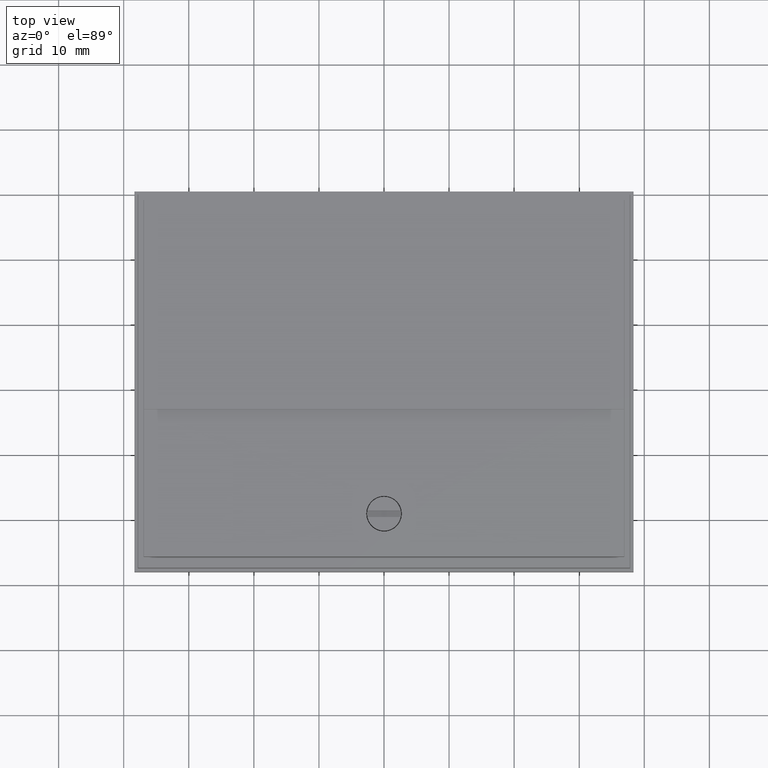
[diagram: clean part render]
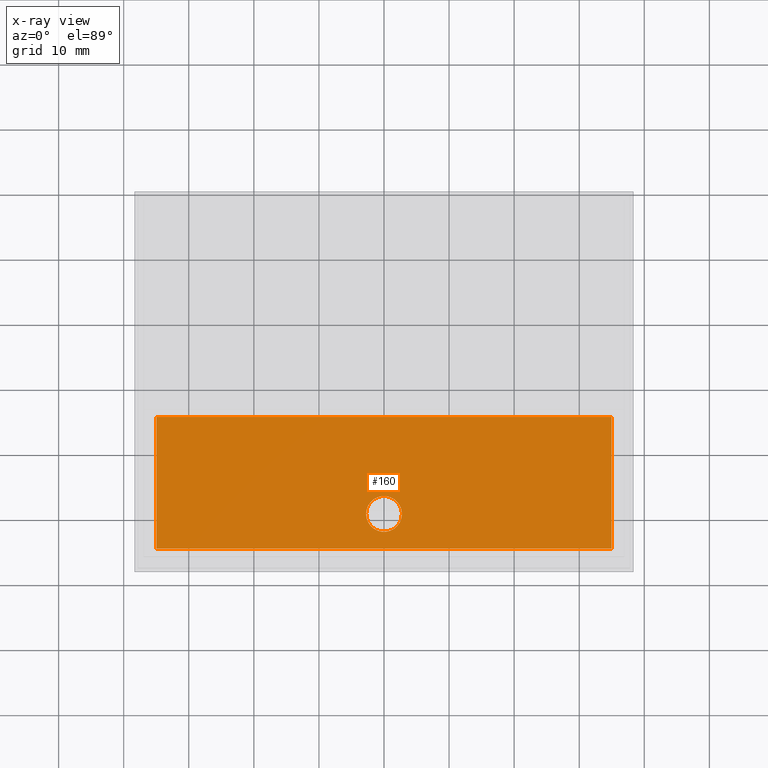
[diagram: x-ray — body ghosted, one internal face saturated and labeled with its STEP entity id]
A machine part, top view, then the same camera in x-ray: the body is ghosted and one INTERNAL B-rep face — a face not visible from any outside direction — is saturated and labeled: STEP entity #160.
In plain terms, the highlighted planar face has unit normal (0, 0, 1).
Its self-contained STEP definition (entity closure, byte-faithful):
#117 = VERTEX_POINT ( 'NONE', #2170 ) ;
#160 = ADVANCED_FACE ( 'NONE', ( #1197, #4000 ), #3518, .F. ) ;
#234 = CARTESIAN_POINT ( 'NONE',  ( 0.1082677165354331006, 1.498513709338240897E-16, 0.1224409448818897655 ) ) ;
#253 = CARTESIAN_POINT ( 'NONE',  ( -1.376468306248145534, 0.5870982275079876800, 0.1224409448818897239 ) ) ;
#433 = CARTESIAN_POINT ( 'NONE',  ( -0.1082677165354330312, 1.365923996832129884E-16, 0.1224409448818897655 ) ) ;
#486 = VERTEX_POINT ( 'NONE', #253 ) ;
#489 = DIRECTION ( 'NONE',  ( -0.000000000000000000, 1.000000000000000000, 0.000000000000000000 ) ) ;
#499 = ORIENTED_EDGE ( 'NONE', *, *, #2754, .T. ) ;
#559 = DIRECTION ( 'NONE',  ( 1.000000000000000000, 0.000000000000000000, -0.000000000000000000 ) ) ;
#601 = EDGE_LOOP ( 'NONE', ( #5745, #499 ) ) ;
#844 = VECTOR ( 'NONE', #489, 39.37007874015748143 ) ;
#1093 = CARTESIAN_POINT ( 'NONE',  ( 1.376468306248145312, 0.5870982275079879020, 0.1224409448818897239 ) ) ;
#1197 = FACE_OUTER_BOUND ( 'NONE', #5361, .T. ) ;
#1223 = VECTOR ( 'NONE', #559, 39.37007874015748143 ) ;
#1306 = ORIENTED_EDGE ( 'NONE', *, *, #1972, .F. ) ;
#1682 = EDGE_CURVE ( 'NONE', #2942, #4531, #4872, .T. ) ;
#1712 = CIRCLE ( 'NONE', #5767, 0.1082677165354330728 ) ;
#1951 = LINE ( 'NONE', #4688, #1223 ) ;
#1972 = EDGE_CURVE ( 'NONE', #486, #5961, #4112, .T. ) ;
#2084 = VERTEX_POINT ( 'NONE', #1093 ) ;
#2102 = VECTOR ( 'NONE', #4714, 39.37007874015748143 ) ;
#2170 = CARTESIAN_POINT ( 'NONE',  ( 1.376468306248145756, -0.2111139755394833284, 0.1224409448818897239 ) ) ;
#2344 = CARTESIAN_POINT ( 'NONE',  ( 3.414809992080331488E-17, 1.365923996832129884E-16, 0.1224409448818897655 ) ) ;
#2435 = CARTESIAN_POINT ( 'NONE',  ( 1.377952755905512028, 0.5870982275079882351, 0.1224409448818897655 ) ) ;
#2478 = AXIS2_PLACEMENT_3D ( 'NONE', #2344, #3241, #5082 ) ;
#2721 = EDGE_CURVE ( 'NONE', #5961, #117, #1951, .T. ) ;
#2754 = EDGE_CURVE ( 'NONE', #4531, #2942, #1712, .T. ) ;
#2881 = LINE ( 'NONE', #2435, #2102 ) ;
#2942 = VERTEX_POINT ( 'NONE', #433 ) ;
#3034 = EDGE_CURVE ( 'NONE', #117, #2084, #5571, .T. ) ;
#3039 = DIRECTION ( 'NONE',  ( 0.000000000000000000, 0.000000000000000000, 1.000000000000000000 ) ) ;
#3087 = EDGE_CURVE ( 'NONE', #2084, #486, #2881, .T. ) ;
#3208 = CARTESIAN_POINT ( 'NONE',  ( 1.376468306248145756, 0.8267716535433071723, 0.1224409448818897655 ) ) ;
#3241 = DIRECTION ( 'NONE',  ( -0.000000000000000000, -0.000000000000000000, 1.000000000000000000 ) ) ;
#3323 = ORIENTED_EDGE ( 'NONE', *, *, #2721, .F. ) ;
#3473 = ORIENTED_EDGE ( 'NONE', *, *, #3087, .F. ) ;
#3485 = CARTESIAN_POINT ( 'NONE',  ( 3.414809992080331488E-17, 1.365923996832129884E-16, 0.1224409448818897655 ) ) ;
#3518 = PLANE ( 'NONE',  #5145 ) ;
#4000 = FACE_BOUND ( 'NONE', #601, .T. ) ;
#4112 = LINE ( 'NONE', #5536, #4783 ) ;
#4330 = DIRECTION ( 'NONE',  ( -0.000000000000000000, -0.000000000000000000, 1.000000000000000000 ) ) ;
#4404 = CARTESIAN_POINT ( 'NONE',  ( -1.376468306248145534, -0.2111139755394833284, 0.1224409448818897239 ) ) ;
#4422 = DIRECTION ( 'NONE',  ( 1.000000000000000000, 0.000000000000000000, -0.000000000000000000 ) ) ;
#4531 = VERTEX_POINT ( 'NONE', #234 ) ;
#4688 = CARTESIAN_POINT ( 'NONE',  ( 1.377952755905512028, -0.2111139755394834394, 0.1224409448818897655 ) ) ;
#4714 = DIRECTION ( 'NONE',  ( -1.000000000000000000, -0.000000000000000000, 0.000000000000000000 ) ) ;
#4783 = VECTOR ( 'NONE', #5110, 39.37007874015748143 ) ;
#4872 = CIRCLE ( 'NONE', #2478, 0.1082677165354330728 ) ;
#5082 = DIRECTION ( 'NONE',  ( -1.000000000000000000, 0.000000000000000000, 0.000000000000000000 ) ) ;
#5110 = DIRECTION ( 'NONE',  ( 0.000000000000000000, -1.000000000000000000, -0.000000000000000000 ) ) ;
#5145 = AXIS2_PLACEMENT_3D ( 'NONE', #5372, #3039, #4422 ) ;
#5299 = ORIENTED_EDGE ( 'NONE', *, *, #3034, .F. ) ;
#5335 = DIRECTION ( 'NONE',  ( -1.000000000000000000, 0.000000000000000000, 0.000000000000000000 ) ) ;
#5361 = EDGE_LOOP ( 'NONE', ( #3473, #5299, #3323, #1306 ) ) ;
#5372 = CARTESIAN_POINT ( 'NONE',  ( 1.377952755905512028, 0.8267716535433071723, 0.1224409448818897655 ) ) ;
#5536 = CARTESIAN_POINT ( 'NONE',  ( -1.376468306248145756, 0.8267716535433071723, 0.1224409448818897655 ) ) ;
#5571 = LINE ( 'NONE', #3208, #844 ) ;
#5745 = ORIENTED_EDGE ( 'NONE', *, *, #1682, .T. ) ;
#5767 = AXIS2_PLACEMENT_3D ( 'NONE', #3485, #4330, #5335 ) ;
#5961 = VERTEX_POINT ( 'NONE', #4404 ) ;